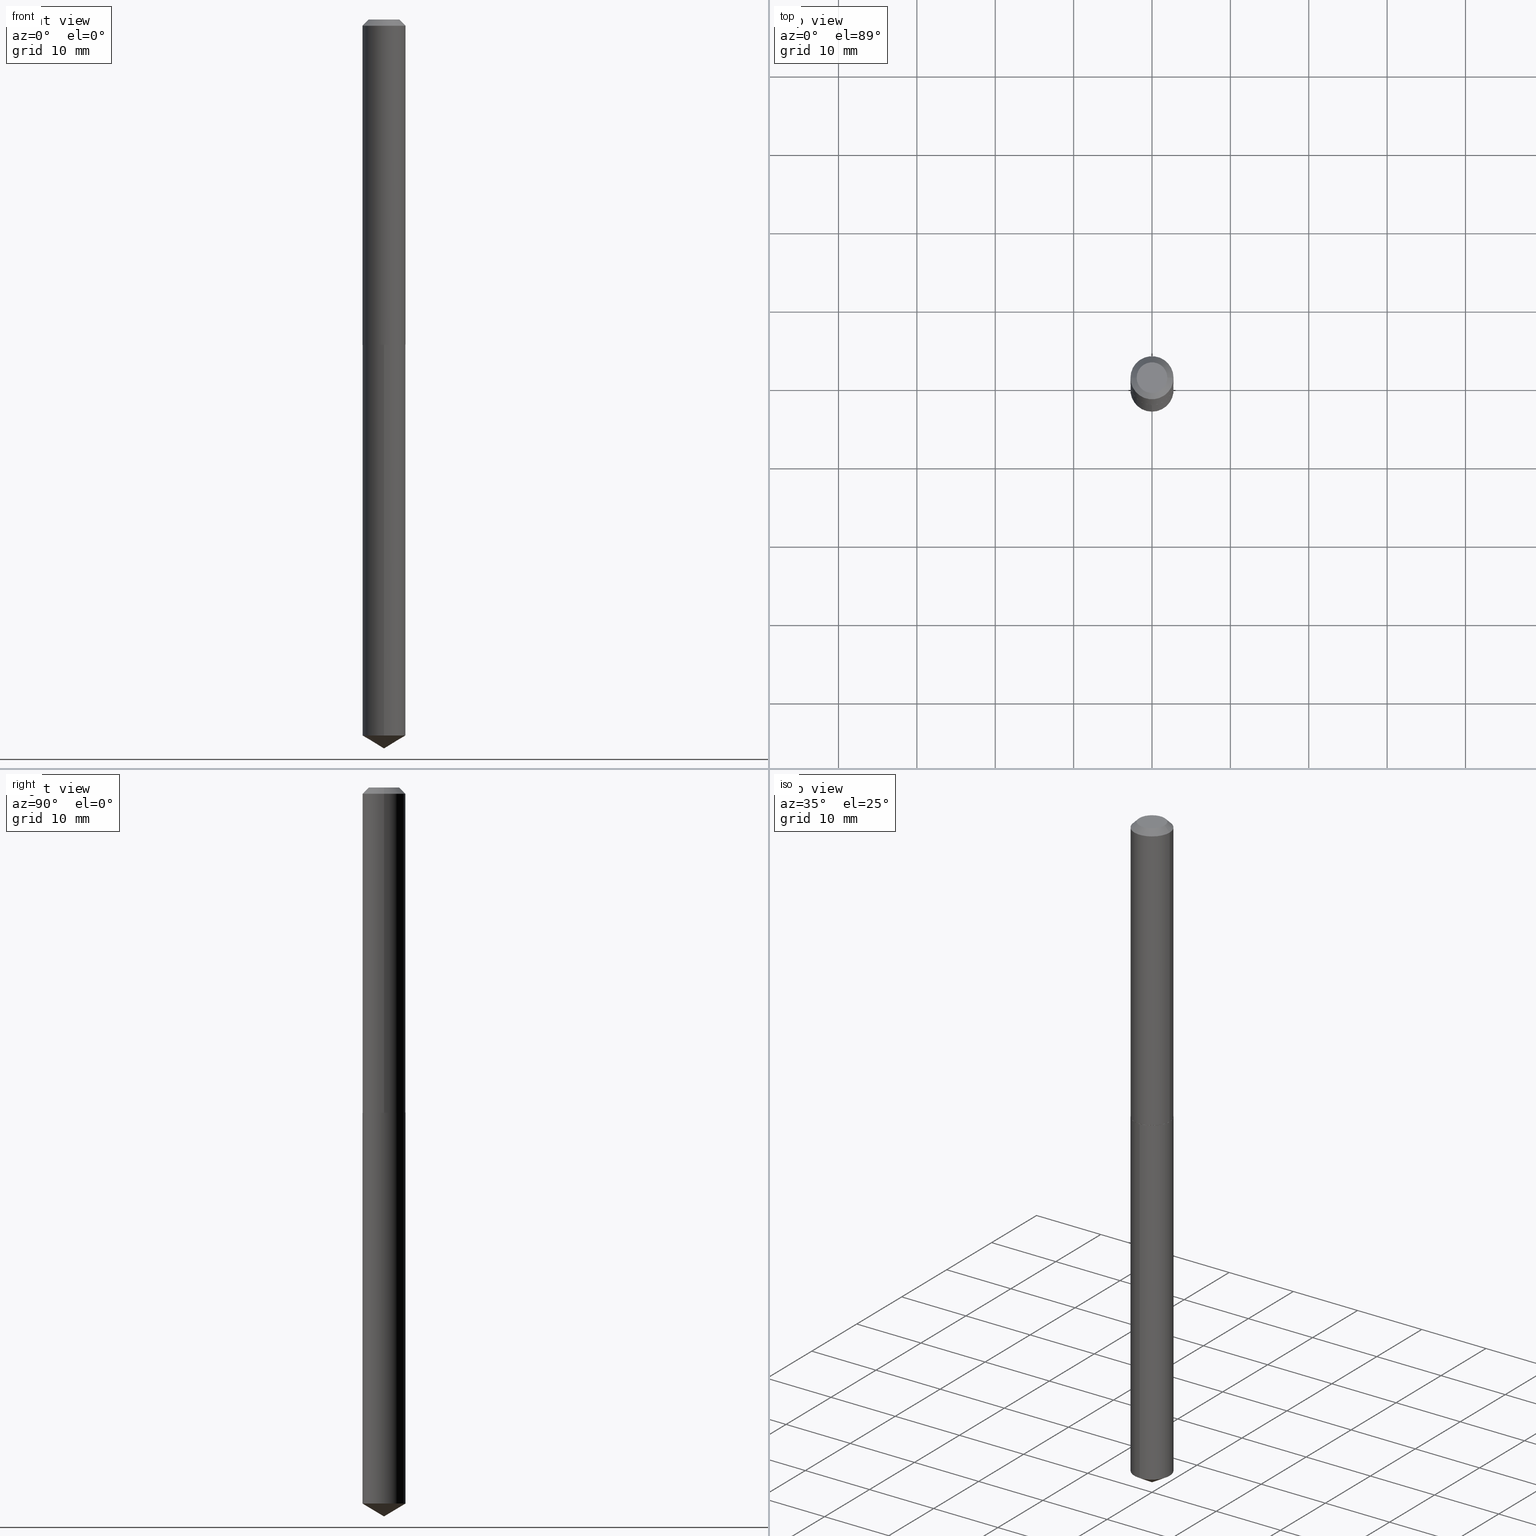
[diagram: canonical four-view strip — front | top / right | iso, engineering-drawing reading convention]
A machine part, canonical four-view strip (front | top / right | iso — engineering-drawing reading convention). The complete STEP part file that produces these views, byte-faithful:
ISO-10303-21;
HEADER;
FILE_DESCRIPTION (( 'STEP AP203' ),
    '1' );
FILE_NAME ('68280.STEP',
    '2024-04-23T12:57:17',
    ( '' ),
    ( '' ),
    'SwSTEP 2.0',
    'SolidWorks 2023',
    '' );
FILE_SCHEMA (( 'CONFIG_CONTROL_DESIGN' ));
ENDSEC;

DATA;
#1 = PERSON_AND_ORGANIZATION ( #288, #210 ) ;
#2 = EDGE_CURVE ( 'NONE', #223, #251, #306, .T. ) ;
#3 = ORIENTED_EDGE ( 'NONE', *, *, #128, .T. ) ;
#4 = DATE_TIME_ROLE ( 'creation_date' ) ;
#5 = AXIS2_PLACEMENT_3D ( 'NONE', #378, #141, #387 ) ;
#6 = APPROVAL_PERSON_ORGANIZATION ( #238, #296, #235 ) ;
#7 = ADVANCED_FACE ( 'NONE', ( #157 ), #13, .T. ) ;
#8 = EDGE_CURVE ( 'NONE', #326, #379, #175, .T. ) ;
#9 = CARTESIAN_POINT ( 'NONE',  ( 0.1082500000000001239, -7.559057098595392471E-16, 5.278461359799106297E-30 ) ) ;
#10 = ORIENTED_EDGE ( 'NONE', *, *, #107, .F. ) ;
#11 = CALENDAR_DATE ( 2024, 23, 4 ) ;
#12 = DIRECTION ( 'NONE',  ( -6.982962677686265922E-15, -1.000000000000000000, 2.523647107311097814E-15 ) ) ;
#13 = CONICAL_SURFACE ( 'NONE', #66, 0.1082500000000002210, 0.7853981633972606513 ) ;
#14 = AXIS2_PLACEMENT_3D ( 'NONE', #184, #282, #76 ) ;
#15 = CARTESIAN_POINT ( 'NONE',  ( 0.000000000000000000, 0.000000000000000000, 0.000000000000000000 ) ) ;
#16 = DIRECTION ( 'NONE',  ( -2.438088387897960049E-29, 3.491481338843145188E-15, 1.000000000000000000 ) ) ;
#17 = EDGE_LOOP ( 'NONE', ( #21, #77, #196, #252 ) ) ;
#18 = ORIENTED_EDGE ( 'NONE', *, *, #97, .F. ) ;
#19 = UNCERTAINTY_MEASURE_WITH_UNIT (LENGTH_MEASURE( 1.000000000000000082E-05 ), #116, 'distance_accuracy_value', 'NONE');
#20 = FACE_OUTER_BOUND ( 'NONE', #339, .T. ) ;
#21 = ORIENTED_EDGE ( 'NONE', *, *, #30, .T. ) ;
#22 = CONICAL_SURFACE ( 'NONE', #110, 0.1082500000000000129, 0.7853981633974452814 ) ;
#23 = PRODUCT ( '68280', '68280', '', ( #287 ) ) ;
#24 = CARTESIAN_POINT ( 'NONE',  ( 3.995406935545275904E-29, -5.704382211401930676E-15, -1.633799999999999919 ) ) ;
#25 = ORIENTED_EDGE ( 'NONE', *, *, #212, .T. ) ;
#26 = DIRECTION ( 'NONE',  ( -2.445518993859690405E-29, 3.491409467236679576E-15, 1.000000000000000000 ) ) ;
#27 = EDGE_LOOP ( 'NONE', ( #18, #94, #192, #123 ) ) ;
#28 = DIRECTION ( 'NONE',  ( 2.445468806185136597E-29, -3.491481338843145583E-15, -1.000000000000000000 ) ) ;
#29 = FACE_OUTER_BOUND ( 'NONE', #190, .T. ) ;
#30 = EDGE_CURVE ( 'NONE', #160, #186, #153, .T. ) ;
#31 = CARTESIAN_POINT ( 'NONE',  ( -0.1082500000000002210, -4.933473959272198657E-15, -1.633299999999999752 ) ) ;
#32 = EDGE_CURVE ( 'NONE', #42, #148, #118, .T. ) ;
#33 = PERSON_AND_ORGANIZATION_ROLE ( 'creator' ) ;
#34 = AXIS2_PLACEMENT_3D ( 'NONE', #15, #156, #368 ) ;
#35 = APPROVAL ( #303, 'UNSPECIFIED' ) ;
#36 = ADVANCED_FACE ( 'NONE', ( #84 ), #384, .T. ) ;
#37 = EDGE_LOOP ( 'NONE', ( #51, #330, #78, #220 ) ) ;
#38 = PERSON_AND_ORGANIZATION ( #288, #210 ) ;
#39 = DIRECTION ( 'NONE',  ( -2.445468806185136877E-29, 3.491481338843145188E-15, 1.000000000000000000 ) ) ;
#40 = APPROVAL_DATE_TIME ( #356, #35 ) ;
#41 = FACE_OUTER_BOUND ( 'NONE', #27, .T. ) ;
#42 = VERTEX_POINT ( 'NONE', #382 ) ;
#43 = PERSON_AND_ORGANIZATION ( #288, #210 ) ;
#44 = EDGE_LOOP ( 'NONE', ( #375, #109, #178, #215 ) ) ;
#45 = CARTESIAN_POINT ( 'NONE',  ( 0.1082500000000002210, -6.458542180592048616E-15, -1.633299999999999752 ) ) ;
#46 = ADVANCED_BREP_SHAPE_REPRESENTATION ( '68280', ( #380, #120, #86 ), #248 ) ;
#47 = CIRCLE ( 'NONE', #62, 0.1082500000000000129 ) ;
#48 = CC_DESIGN_PERSON_AND_ORGANIZATION_ASSIGNMENT ( #328, #205, ( #61 ) ) ;
#49 = DIRECTION ( 'NONE',  ( 0.7071067811865453523, -7.319954787623248157E-15, -0.7071067811865496822 ) ) ;
#50 = EDGE_LOOP ( 'NONE', ( #135, #221 ) ) ;
#51 = ORIENTED_EDGE ( 'NONE', *, *, #346, .F. ) ;
#52 = ADVANCED_FACE ( 'NONE', ( #352 ), #354, .T. ) ;
#53 = FACE_OUTER_BOUND ( 'NONE', #50, .T. ) ;
#54 = VERTEX_POINT ( 'NONE', #59 ) ;
#55 = CONICAL_SURFACE ( 'NONE', #321, 65.52281426576836054, 1.029744258676654090 ) ;
#56 = APPLICATION_PROTOCOL_DEFINITION ( 'international standard', 'config_control_design', 1994, #373 ) ;
#57 = CARTESIAN_POINT ( 'NONE',  ( 3.995406935545275904E-29, -5.704382211401930676E-15, -1.633799999999999919 ) ) ;
#58 = LENGTH_MEASURE_WITH_UNIT ( LENGTH_MEASURE( 0.02539999999999999897 ), #353 );
#59 = CARTESIAN_POINT ( 'NONE',  ( 7.691625114603964021E-16, 0.1082499999999874674, -3.596356837990267064 ) ) ;
#60 = DIRECTION ( 'NONE',  ( 1.000000000000000000, -6.982962677686266711E-15, 0.000000000000000000 ) ) ;
#61 = PRODUCT_DEFINITION ( 'UNKNOWN', '', #155, #106 ) ;
#62 = AXIS2_PLACEMENT_3D ( 'NONE', #173, #89, #60 ) ;
#63 = LOCAL_TIME ( 8, 57, 17.00000000000000000, #336 ) ;
#64 = DIRECTION ( 'NONE',  ( -6.982962677686265922E-15, -1.000000000000000000, 5.047294214622195629E-15 ) ) ;
#65 = EDGE_CURVE ( 'NONE', #379, #326, #47, .T. ) ;
#66 = AXIS2_PLACEMENT_3D ( 'NONE', #126, #243, #362 ) ;
#67 = CC_DESIGN_APPROVAL ( #35, ( #61 ) ) ;
#68 = DIRECTION ( 'NONE',  ( -2.445518993859690405E-29, 3.491409467236679576E-15, 1.000000000000000000 ) ) ;
#69 = CYLINDRICAL_SURFACE ( 'NONE', #34, 0.1082500000000001239 ) ;
#70 = DIRECTION ( 'NONE',  ( 1.000000000000000000, -6.982962677686266711E-15, 0.000000000000000000 ) ) ;
#71 = VECTOR ( 'NONE', #87, 39.37007874015748143 ) ;
#72 = CARTESIAN_POINT ( 'NONE',  ( -7.559057098594504016E-16, -0.1082500000000125445, -3.596356837990265731 ) ) ;
#73 = ORIENTED_EDGE ( 'NONE', *, *, #322, .T. ) ;
#74 = APPROVAL_STATUS ( 'not_yet_approved' ) ;
#75 = CARTESIAN_POINT ( 'NONE',  ( 8.794876959379687620E-29, -1.255647173555123152E-14, -3.596356837990266619 ) ) ;
#76 = DIRECTION ( 'NONE',  ( 1.000000000000000000, -6.982962677686266711E-15, 4.876176775795935793E-29 ) ) ;
#77 = ORIENTED_EDGE ( 'NONE', *, *, #346, .T. ) ;
#78 = ORIENTED_EDGE ( 'NONE', *, *, #144, .T. ) ;
#79 = CARTESIAN_POINT ( 'NONE',  ( 0.1082500000000002210, -6.458542180592048616E-15, -1.633299999999999752 ) ) ;
#80 = VERTEX_POINT ( 'NONE', #146 ) ;
#81 = AXIS2_PLACEMENT_3D ( 'NONE', #147, #191, #12 ) ;
#82 = ORIENTED_EDGE ( 'NONE', *, *, #291, .F. ) ;
#83 = CC_DESIGN_PERSON_AND_ORGANIZATION_ASSIGNMENT ( #98, #211, ( #155 ) ) ;
#84 = FACE_OUTER_BOUND ( 'NONE', #245, .T. ) ;
#85 = CIRCLE ( 'NONE', #285, 0.1082499999999999990 ) ;
#86 = AXIS2_PLACEMENT_3D ( 'NONE', #381, #232, #351 ) ;
#87 = DIRECTION ( 'NONE',  ( -2.445468806185136877E-29, 3.491481338843145188E-15, 1.000000000000000000 ) ) ;
#88 = ADVANCED_FACE ( 'NONE', ( #119 ), #122, .T. ) ;
#89 = DIRECTION ( 'NONE',  ( -2.445468806185136597E-29, 3.491481338843145583E-15, 1.000000000000000000 ) ) ;
#90 = PLANE ( 'NONE',  #203 ) ;
#91 = CARTESIAN_POINT ( 'NONE',  ( 3.995406935545275904E-29, -5.704382211401930676E-15, -1.633799999999999919 ) ) ;
#92 = APPROVAL_PERSON_ORGANIZATION ( #43, #150, #158 ) ;
#93 = CC_DESIGN_PERSON_AND_ORGANIZATION_ASSIGNMENT ( #38, #33, ( #155 ) ) ;
#94 = ORIENTED_EDGE ( 'NONE', *, *, #250, .F. ) ;
#95 = CALENDAR_DATE ( 2024, 23, 4 ) ;
#96 = APPROVAL_DATE_TIME ( #297, #296 ) ;
#97 = EDGE_CURVE ( 'NONE', #80, #379, #180, .T. ) ;
#98 = PERSON_AND_ORGANIZATION ( #288, #210 ) ;
#99 = DIRECTION ( 'NONE',  ( -2.445468806185136597E-29, 3.491481338843145583E-15, 1.000000000000000000 ) ) ;
#100 = LINE ( 'NONE', #182, #253 ) ;
#101 = LINE ( 'NONE', #9, #124 ) ;
#102 = CIRCLE ( 'NONE', #132, 0.1082499999999999990 ) ;
#103 = DIRECTION ( 'NONE',  ( -2.445518993859690405E-29, 3.491409467236679576E-15, 1.000000000000000000 ) ) ;
#104 = EDGE_CURVE ( 'NONE', #275, #223, #100, .T. ) ;
#105 = FACE_OUTER_BOUND ( 'NONE', #37, .T. ) ;
#106 = DESIGN_CONTEXT ( 'detailed design', #263, 'design' ) ;
#107 = EDGE_CURVE ( 'NONE', #80, #302, #183, .T. ) ;
#108 = ORIENTED_EDGE ( 'NONE', *, *, #386, .F. ) ;
#109 = ORIENTED_EDGE ( 'NONE', *, *, #389, .T. ) ;
#110 = AXIS2_PLACEMENT_3D ( 'NONE', #159, #218, #219 ) ;
#111 = CARTESIAN_POINT ( 'NONE',  ( 8.954024682145052788E-29, -1.278344662334037915E-14, -3.661399999999999988 ) ) ;
#112 = ORIENTED_EDGE ( 'NONE', *, *, #104, .F. ) ;
#113 = DIRECTION ( 'NONE',  ( -0.7071067811865453523, 2.468850131082234184E-15, -0.7071067811865496822 ) ) ;
#114 = CARTESIAN_POINT ( 'NONE',  ( -8.732633410131152453E-28, 1.246735015920683391E-13, 35.70867874015748100 ) ) ;
#115 = AXIS2_PLACEMENT_3D ( 'NONE', #272, #333, #70 ) ;
#116 =( CONVERSION_BASED_UNIT ( 'INCH', #58 ) LENGTH_UNIT ( ) NAMED_UNIT ( #294 ) );
#117 = CARTESIAN_POINT ( 'NONE',  ( 0.1082500000000000129, -8.650145016983875588E-16, -0.03125000000000022204 ) ) ;
#118 = CIRCLE ( 'NONE', #278, 0.1077500000000002345 ) ;
#119 = FACE_OUTER_BOUND ( 'NONE', #44, .T. ) ;
#120 = MANIFOLD_SOLID_BREP ( 'Body-Move/Copy2[2]', #167 ) ;
#121 = COORDINATED_UNIVERSAL_TIME_OFFSET ( 5, 0, .BEHIND. ) ;
#122 = CYLINDRICAL_SURFACE ( 'NONE', #81, 0.1082499999999999990 ) ;
#123 = ORIENTED_EDGE ( 'NONE', *, *, #8, .T. ) ;
#124 = VECTOR ( 'NONE', #39, 39.37007874015748143 ) ;
#125 = CARTESIAN_POINT ( 'NONE',  ( 3.995406935545275904E-29, -5.704382211401930676E-15, -1.633799999999999919 ) ) ;
#126 = CARTESIAN_POINT ( 'NONE',  ( 3.994184201142183102E-29, -5.702636470732509172E-15, -1.633299999999999752 ) ) ;
#127 = DIRECTION ( 'NONE',  ( -6.982962677686269077E-15, -1.000000000000000000, 3.468864327941598158E-15 ) ) ;
#128 = EDGE_CURVE ( 'NONE', #251, #227, #266, .T. ) ;
#129 = DATE_AND_TIME ( #11, #170 ) ;
#130 = DIRECTION ( 'NONE',  ( -6.982962677686265922E-15, -1.000000000000000000, 2.523647107311097814E-15 ) ) ;
#131 = ORIENTED_EDGE ( 'NONE', *, *, #291, .T. ) ;
#132 = AXIS2_PLACEMENT_3D ( 'NONE', #75, #152, #312 ) ;
#133 = CARTESIAN_POINT ( 'NONE',  ( -2.934938834991140479E-47, 4.190314816979034009E-33, 1.200153863164406066E-18 ) ) ;
#134 = ORIENTED_EDGE ( 'NONE', *, *, #318, .T. ) ;
#135 = ORIENTED_EDGE ( 'NONE', *, *, #322, .F. ) ;
#136 = AXIS2_PLACEMENT_3D ( 'NONE', #137, #16, #174 ) ;
#137 = CARTESIAN_POINT ( 'NONE',  ( 3.995406935545275904E-29, -5.704382211401930676E-15, -1.633799999999999919 ) ) ;
#138 = EDGE_LOOP ( 'NONE', ( #10, #340, #315, #108 ) ) ;
#139 = EDGE_CURVE ( 'NONE', #186, #160, #365, .T. ) ;
#140 = DIRECTION ( 'NONE',  ( -6.982962677686269077E-15, -1.000000000000000000, 3.468864327941598158E-15 ) ) ;
#141 = DIRECTION ( 'NONE',  ( -2.445468806185136597E-29, 3.491481338843145583E-15, 1.000000000000000000 ) ) ;
#142 = CARTESIAN_POINT ( 'NONE',  ( -1.467469417495570240E-47, 2.095157408489517005E-33, 6.000769315822030332E-19 ) ) ;
#143 = DIRECTION ( 'NONE',  ( -1.000000000000000000, 6.982962677686266711E-15, 0.000000000000000000 ) ) ;
#144 = EDGE_CURVE ( 'NONE', #160, #379, #101, .T. ) ;
#145 = FACE_OUTER_BOUND ( 'NONE', #193, .T. ) ;
#146 = CARTESIAN_POINT ( 'NONE',  ( 0.07699999999999998512, -6.900080229630126447E-16, 1.200153863168698194E-18 ) ) ;
#147 = CARTESIAN_POINT ( 'NONE',  ( 3.995406935545275904E-29, -5.704382211401930676E-15, -1.633799999999999919 ) ) ;
#148 = VERTEX_POINT ( 'NONE', #241 ) ;
#149 = DATE_TIME_ROLE ( 'classification_date' ) ;
#150 = APPROVAL ( #74, 'UNSPECIFIED' ) ;
#151 = ORIENTED_EDGE ( 'NONE', *, *, #107, .T. ) ;
#152 = DIRECTION ( 'NONE',  ( -2.445518993859690405E-29, 3.491409467236679576E-15, 1.000000000000000000 ) ) ;
#153 = CIRCLE ( 'NONE', #5, 0.1082500000000002210 ) ;
#154 = ORIENTED_EDGE ( 'NONE', *, *, #327, .F. ) ;
#155 = PRODUCT_DEFINITION_FORMATION_WITH_SPECIFIED_SOURCE ( 'ANY', '', #23, .NOT_KNOWN. ) ;
#156 = DIRECTION ( 'NONE',  ( -2.445468806185136597E-29, 3.491481338843145583E-15, 1.000000000000000000 ) ) ;
#157 = FACE_OUTER_BOUND ( 'NONE', #276, .T. ) ;
#158 = APPROVAL_ROLE ( '' ) ;
#159 = CARTESIAN_POINT ( 'NONE',  ( 7.642090019328606165E-31, -1.091087918388490760E-16, -0.03125000000000022204 ) ) ;
#160 = VERTEX_POINT ( 'NONE', #79 ) ;
#161 = DIRECTION ( 'NONE',  ( 0.7071067811864147901, -2.468850131080866299E-15, 0.7071067811866802444 ) ) ;
#162 = CARTESIAN_POINT ( 'NONE',  ( -0.1082500000000000129, -2.136710119825369016E-15, -0.03125000000000022204 ) ) ;
#163 = AXIS2_PLACEMENT_3D ( 'NONE', #350, #200, #319 ) ;
#164 = CARTESIAN_POINT ( 'NONE',  ( -0.1082500000000002210, -4.933473959272198657E-15, -1.633299999999999752 ) ) ;
#165 = ORIENTED_EDGE ( 'NONE', *, *, #139, .F. ) ;
#166 = PRODUCT_RELATED_PRODUCT_CATEGORY ( 'detail', '', ( #23 ) ) ;
#167 = CLOSED_SHELL ( 'NONE', ( #376, #320, #7, #338, #52, #284, #207, #357 ) ) ;
#168 = ORIENTED_EDGE ( 'NONE', *, *, #250, .T. ) ;
#169 = PRODUCT_DEFINITION_SHAPE ( 'NONE', 'NONE',  #61 ) ;
#170 = LOCAL_TIME ( 8, 57, 17.00000000000000000, #273 ) ;
#171 = DIRECTION ( 'NONE',  ( -1.000000000000000000, 6.982962677686265922E-15, -4.876176775795935793E-29 ) ) ;
#172 = CARTESIAN_POINT ( 'NONE',  ( 8.794876959379687620E-29, -1.255647173555123152E-14, -3.596356837990266619 ) ) ;
#173 = CARTESIAN_POINT ( 'NONE',  ( 7.642090019328606165E-31, -1.091087918388490760E-16, -0.03125000000000022204 ) ) ;
#174 = DIRECTION ( 'NONE',  ( 1.000000000000000000, -6.982962677686265922E-15, 4.876176775795935793E-29 ) ) ;
#175 = CIRCLE ( 'NONE', #115, 0.1082500000000000129 ) ;
#176 = AXIS2_PLACEMENT_3D ( 'NONE', #172, #201, #64 ) ;
#177 = VECTOR ( 'NONE', #161, 39.37007874015748143 ) ;
#178 = ORIENTED_EDGE ( 'NONE', *, *, #2, .T. ) ;
#179 = APPROVAL_STATUS ( 'not_yet_approved' ) ;
#180 = LINE ( 'NONE', #214, #292 ) ;
#181 = CARTESIAN_POINT ( 'NONE',  ( -7.559057098594983249E-16, -0.1082500000000057028, -1.633799999999999697 ) ) ;
#182 = CARTESIAN_POINT ( 'NONE',  ( 8.953859250872498583E-29, -1.278368147100166720E-14, -3.661399999999999988 ) ) ;
#183 = CIRCLE ( 'NONE', #262, 0.07699999999999998512 ) ;
#184 = CARTESIAN_POINT ( 'NONE',  ( 0.000000000000000000, 0.000000000000000000, 0.000000000000000000 ) ) ;
#185 = LINE ( 'NONE', #45, #177 ) ;
#186 = VERTEX_POINT ( 'NONE', #164 ) ;
#187 = ORIENTED_EDGE ( 'NONE', *, *, #389, .F. ) ;
#188 = DIRECTION ( 'NONE',  ( -2.445468806185136597E-29, 3.491481338843145583E-15, 1.000000000000000000 ) ) ;
#189 = DIRECTION ( 'NONE',  ( -2.445468806185136597E-29, 3.491481338843145583E-15, 1.000000000000000000 ) ) ;
#190 = EDGE_LOOP ( 'NONE', ( #3, #25 ) ) ;
#191 = DIRECTION ( 'NONE',  ( -2.445518993859690405E-29, 3.491409467236679576E-15, 1.000000000000000000 ) ) ;
#192 = ORIENTED_EDGE ( 'NONE', *, *, #386, .T. ) ;
#193 = EDGE_LOOP ( 'NONE', ( #168, #151 ) ) ;
#194 = AXIS2_PLACEMENT_3D ( 'NONE', #142, #388, #171 ) ;
#195 = CARTESIAN_POINT ( 'NONE',  ( 3.995406935545275904E-29, -5.704382211401930676E-15, -1.633799999999999919 ) ) ;
#196 = ORIENTED_EDGE ( 'NONE', *, *, #65, .F. ) ;
#197 = CC_DESIGN_PERSON_AND_ORGANIZATION_ASSIGNMENT ( #246, #267, ( #255 ) ) ;
#198 = AXIS2_PLACEMENT_3D ( 'NONE', #133, #305, #332 ) ;
#199 = PLANE ( 'NONE',  #194 ) ;
#200 = DIRECTION ( 'NONE',  ( -2.445468806185136597E-29, 3.491481338843145583E-15, 1.000000000000000000 ) ) ;
#201 = DIRECTION ( 'NONE',  ( -2.445518993859690405E-29, 3.491409467236679576E-15, 1.000000000000000000 ) ) ;
#202 = DIRECTION ( 'NONE',  ( 6.982962677686265922E-15, 1.000000000000000000, -3.491409467236679576E-15 ) ) ;
#203 = AXIS2_PLACEMENT_3D ( 'NONE', #91, #204, #202 ) ;
#204 = DIRECTION ( 'NONE',  ( 2.445518993859690124E-29, -3.491409467236679576E-15, -1.000000000000000000 ) ) ;
#205 = PERSON_AND_ORGANIZATION_ROLE ( 'creator' ) ;
#206 = SECURITY_CLASSIFICATION_LEVEL ( 'unclassified' ) ;
#207 = ADVANCED_FACE ( 'NONE', ( #41 ), #22, .T. ) ;
#208 = ORIENTED_EDGE ( 'NONE', *, *, #301, .T. ) ;
#209 = PERSON_AND_ORGANIZATION_ROLE ( 'design_owner' ) ;
#210 = ORGANIZATION ( 'UNSPECIFIED', 'UNSPECIFIED', '' ) ;
#211 = PERSON_AND_ORGANIZATION_ROLE ( 'design_supplier' ) ;
#212 = EDGE_CURVE ( 'NONE', #227, #251, #85, .T. ) ;
#213 = ORIENTED_EDGE ( 'NONE', *, *, #30, .F. ) ;
#214 = CARTESIAN_POINT ( 'NONE',  ( 0.1082500000000000129, -8.517577000976174743E-16, -0.03125000000000022204 ) ) ;
#215 = ORIENTED_EDGE ( 'NONE', *, *, #212, .F. ) ;
#216 = AXIS2_PLACEMENT_3D ( 'NONE', #125, #309, #337 ) ;
#217 = SHAPE_DEFINITION_REPRESENTATION ( #169, #46 ) ;
#218 = DIRECTION ( 'NONE',  ( 2.445468806185136597E-29, -3.491481338843145583E-15, -1.000000000000000000 ) ) ;
#219 = DIRECTION ( 'NONE',  ( -1.000000000000000000, 6.982962677686266711E-15, 0.000000000000000000 ) ) ;
#220 = ORIENTED_EDGE ( 'NONE', *, *, #8, .F. ) ;
#221 = ORIENTED_EDGE ( 'NONE', *, *, #32, .F. ) ;
#222 = CC_DESIGN_DATE_AND_TIME_ASSIGNMENT ( #264, #4, ( #61 ) ) ;
#223 = VERTEX_POINT ( 'NONE', #72 ) ;
#224 = AXIS2_PLACEMENT_3D ( 'NONE', #247, #99, #329 ) ;
#225 = ORIENTED_EDGE ( 'NONE', *, *, #104, .T. ) ;
#226 = AXIS2_PLACEMENT_3D ( 'NONE', #195, #189, #313 ) ;
#227 = VERTEX_POINT ( 'NONE', #361 ) ;
#228 =( NAMED_UNIT ( * ) SI_UNIT ( $, .STERADIAN. ) SOLID_ANGLE_UNIT ( ) );
#229 = CARTESIAN_POINT ( 'NONE',  ( -0.1082500000000001239, 7.691625114603093316E-16, -5.324747235200940914E-30 ) ) ;
#230 = DIRECTION ( 'NONE',  ( -6.982962677686265922E-15, -1.000000000000000000, 2.523647107311097814E-15 ) ) ;
#231 = AXIS2_PLACEMENT_3D ( 'NONE', #258, #28, #143 ) ;
#232 = DIRECTION ( 'NONE',  ( 0.000000000000000000, 0.000000000000000000, 1.000000000000000000 ) ) ;
#233 = LOCAL_TIME ( 8, 57, 17.00000000000000000, #121 ) ;
#234 = APPROVAL_ROLE ( '' ) ;
#235 = APPROVAL_ROLE ( '' ) ;
#236 = DATE_AND_TIME ( #310, #63 ) ;
#237 = ORIENTED_EDGE ( 'NONE', *, *, #32, .T. ) ;
#238 = PERSON_AND_ORGANIZATION ( #288, #210 ) ;
#239 = VECTOR ( 'NONE', #269, 39.37007874015748143 ) ;
#240 = ADVANCED_FACE ( 'NONE', ( #20 ), #55, .T. ) ;
#241 = CARTESIAN_POINT ( 'NONE',  ( 0.1077500000000002345, -6.456796439922627113E-15, -1.633799999999999919 ) ) ;
#242 = DIRECTION ( 'NONE',  ( -5.985567269335942857E-15, -0.8571673007021103352, 0.5150380749100574862 ) ) ;
#243 = DIRECTION ( 'NONE',  ( -2.445468806185136597E-29, 3.491481338843145583E-15, 1.000000000000000000 ) ) ;
#244 = CARTESIAN_POINT ( 'NONE',  ( -0.07699999999999998512, 5.922425221012659905E-16, 1.200153863160455214E-18 ) ) ;
#245 = EDGE_LOOP ( 'NONE', ( #131, #208, #369, #374 ) ) ;
#246 = PERSON_AND_ORGANIZATION ( #288, #210 ) ;
#247 = CARTESIAN_POINT ( 'NONE',  ( 3.994184201142183102E-29, -5.702636470732509172E-15, -1.633299999999999752 ) ) ;
#248 =( GEOMETRIC_REPRESENTATION_CONTEXT ( 3 ) GLOBAL_UNCERTAINTY_ASSIGNED_CONTEXT ( ( #19 ) ) GLOBAL_UNIT_ASSIGNED_CONTEXT ( ( #116, #261, #228 ) ) REPRESENTATION_CONTEXT ( 'NONE', 'WORKASPACE' ) );
#249 = FACE_OUTER_BOUND ( 'NONE', #17, .T. ) ;
#250 = EDGE_CURVE ( 'NONE', #302, #80, #298, .T. ) ;
#251 = VERTEX_POINT ( 'NONE', #341 ) ;
#252 = ORIENTED_EDGE ( 'NONE', *, *, #144, .F. ) ;
#253 = VECTOR ( 'NONE', #242, 39.37007874015748143 ) ;
#254 = ORIENTED_EDGE ( 'NONE', *, *, #327, .T. ) ;
#255 = SECURITY_CLASSIFICATION ( '', '', #206 ) ;
#256 = EDGE_LOOP ( 'NONE', ( #359, #237, #134, #165 ) ) ;
#257 = DIRECTION ( 'NONE',  ( -2.445518993859690405E-29, 3.491409467236679576E-15, 1.000000000000000000 ) ) ;
#258 = CARTESIAN_POINT ( 'NONE',  ( 7.642090019328606165E-31, -1.091087918388490760E-16, -0.03125000000000022204 ) ) ;
#259 = DIRECTION ( 'NONE',  ( -2.445468806185136597E-29, 3.491481338843145583E-15, 1.000000000000000000 ) ) ;
#260 = LINE ( 'NONE', #31, #377 ) ;
#261 =( NAMED_UNIT ( * ) PLANE_ANGLE_UNIT ( ) SI_UNIT ( $, .RADIAN. ) );
#262 = AXIS2_PLACEMENT_3D ( 'NONE', #314, #188, #311 ) ;
#263 = APPLICATION_CONTEXT ( 'configuration controlled 3d designs of mechanical parts and assemblies' ) ;
#264 = DATE_AND_TIME ( #300, #280 ) ;
#265 = PERSON_AND_ORGANIZATION ( #288, #210 ) ;
#266 = CIRCLE ( 'NONE', #216, 0.1082499999999999990 ) ;
#267 = PERSON_AND_ORGANIZATION_ROLE ( 'classification_officer' ) ;
#268 = LINE ( 'NONE', #342, #349 ) ;
#269 = DIRECTION ( 'NONE',  ( -2.445518993859690405E-29, 3.491409467236679576E-15, 1.000000000000000000 ) ) ;
#270 = CC_DESIGN_PERSON_AND_ORGANIZATION_ASSIGNMENT ( #1, #209, ( #23 ) ) ;
#271 = DIRECTION ( 'NONE',  ( -2.445518993859690405E-29, 3.491409467236679576E-15, 1.000000000000000000 ) ) ;
#272 = CARTESIAN_POINT ( 'NONE',  ( 7.642090019328606165E-31, -1.091087918388490760E-16, -0.03125000000000022204 ) ) ;
#273 = COORDINATED_UNIVERSAL_TIME_OFFSET ( 5, 0, .BEHIND. ) ;
#274 = CARTESIAN_POINT ( 'NONE',  ( 3.995406935545275904E-29, -5.704382211401930676E-15, -1.633799999999999919 ) ) ;
#275 = VERTEX_POINT ( 'NONE', #277 ) ;
#276 = EDGE_LOOP ( 'NONE', ( #73, #281, #213, #283 ) ) ;
#277 = CARTESIAN_POINT ( 'NONE',  ( 8.954023244117870758E-29, -1.278344662334037915E-14, -3.661399999999999988 ) ) ;
#278 = AXIS2_PLACEMENT_3D ( 'NONE', #24, #259, #347 ) ;
#279 = LINE ( 'NONE', #111, #390 ) ;
#280 = LOCAL_TIME ( 8, 57, 17.00000000000000000, #304 ) ;
#281 = ORIENTED_EDGE ( 'NONE', *, *, #370, .T. ) ;
#282 = DIRECTION ( 'NONE',  ( -2.445468806185136597E-29, 3.491481338843145583E-15, 1.000000000000000000 ) ) ;
#283 = ORIENTED_EDGE ( 'NONE', *, *, #318, .F. ) ;
#284 = ADVANCED_FACE ( 'NONE', ( #105 ), #69, .T. ) ;
#285 = AXIS2_PLACEMENT_3D ( 'NONE', #274, #103, #130 ) ;
#286 = LOCAL_TIME ( 8, 57, 17.00000000000000000, #360 ) ;
#287 = MECHANICAL_CONTEXT ( 'NONE', #373, 'mechanical' ) ;
#288 = PERSON ( 'UNSPECIFIED', 'UNSPECIFIED', 'UNSPECIFIED', ('UNSPECIFIED'), ('UNSPECIFIED'), ('UNSPECIFIED') ) ;
#289 = FACE_OUTER_BOUND ( 'NONE', #138, .T. ) ;
#290 = LINE ( 'NONE', #229, #71 ) ;
#291 = EDGE_CURVE ( 'NONE', #223, #54, #102, .T. ) ;
#292 = VECTOR ( 'NONE', #49, 39.37007874015748143 ) ;
#293 = APPROVAL_PERSON_ORGANIZATION ( #265, #35, #234 ) ;
#294 = DIMENSIONAL_EXPONENTS ( 1.000000000000000000, 0.000000000000000000, 0.000000000000000000, 0.000000000000000000, 0.000000000000000000, 0.000000000000000000, 0.000000000000000000 ) ;
#295 = FACE_OUTER_BOUND ( 'NONE', #345, .T. ) ;
#296 = APPROVAL ( #179, 'UNSPECIFIED' ) ;
#297 = DATE_AND_TIME ( #95, #286 ) ;
#298 = CIRCLE ( 'NONE', #198, 0.07699999999999998512 ) ;
#299 = CC_DESIGN_SECURITY_CLASSIFICATION ( #255, ( #155 ) ) ;
#300 = CALENDAR_DATE ( 2024, 23, 4 ) ;
#301 = EDGE_CURVE ( 'NONE', #54, #227, #268, .T. ) ;
#302 = VERTEX_POINT ( 'NONE', #244 ) ;
#303 = APPROVAL_STATUS ( 'not_yet_approved' ) ;
#304 = COORDINATED_UNIVERSAL_TIME_OFFSET ( 5, 0, .BEHIND. ) ;
#305 = DIRECTION ( 'NONE',  ( -2.445468806185136597E-29, 3.491481338843145583E-15, 1.000000000000000000 ) ) ;
#306 = LINE ( 'NONE', #181, #239 ) ;
#307 = CONICAL_SURFACE ( 'NONE', #308, 65.52281426576836054, 1.029744258676654090 ) ;
#308 = AXIS2_PLACEMENT_3D ( 'NONE', #114, #26, #140 ) ;
#309 = DIRECTION ( 'NONE',  ( -2.445518993859690405E-29, 3.491409467236679576E-15, 1.000000000000000000 ) ) ;
#310 = CALENDAR_DATE ( 2024, 23, 4 ) ;
#311 = DIRECTION ( 'NONE',  ( 1.000000000000000000, -6.982962677686266711E-15, 4.876247235587762773E-29 ) ) ;
#312 = DIRECTION ( 'NONE',  ( -6.982962677686265922E-15, -1.000000000000000000, 5.047294214622195629E-15 ) ) ;
#313 = DIRECTION ( 'NONE',  ( 1.000000000000000000, -6.982962677686265133E-15, 0.000000000000000000 ) ) ;
#314 = CARTESIAN_POINT ( 'NONE',  ( -2.934938834991140479E-47, 4.190314816979034009E-33, 1.200153863164406066E-18 ) ) ;
#315 = ORIENTED_EDGE ( 'NONE', *, *, #65, .T. ) ;
#316 = DIRECTION ( 'NONE',  ( 6.090539988449778436E-15, 0.8571673007021139989, 0.5150380749100514910 ) ) ;
#317 = CC_DESIGN_DATE_AND_TIME_ASSIGNMENT ( #236, #149, ( #255 ) ) ;
#318 = EDGE_CURVE ( 'NONE', #148, #160, #185, .T. ) ;
#319 = DIRECTION ( 'NONE',  ( 1.000000000000000000, -6.982962677686261977E-15, 0.000000000000000000 ) ) ;
#320 = ADVANCED_FACE ( 'NONE', ( #249 ), #371, .T. ) ;
#321 = AXIS2_PLACEMENT_3D ( 'NONE', #364, #68, #127 ) ;
#322 = EDGE_CURVE ( 'NONE', #148, #42, #366, .T. ) ;
#323 = DIRECTION ( 'NONE',  ( -0.7071067811864147901, 7.493145998869874533E-15, 0.7071067811866802444 ) ) ;
#324 = CALENDAR_DATE ( 2024, 23, 4 ) ;
#325 = AXIS2_PLACEMENT_3D ( 'NONE', #57, #257, #230 ) ;
#326 = VERTEX_POINT ( 'NONE', #162 ) ;
#327 = EDGE_CURVE ( 'NONE', #275, #54, #279, .T. ) ;
#328 = PERSON_AND_ORGANIZATION ( #288, #210 ) ;
#329 = DIRECTION ( 'NONE',  ( 1.000000000000000000, -6.982962677686261977E-15, 0.000000000000000000 ) ) ;
#330 = ORIENTED_EDGE ( 'NONE', *, *, #139, .T. ) ;
#331 = APPLICATION_PROTOCOL_DEFINITION ( 'international standard', 'config_control_design', 1994, #263 ) ;
#332 = DIRECTION ( 'NONE',  ( 1.000000000000000000, -6.982962677686266711E-15, 4.876247235587762773E-29 ) ) ;
#333 = DIRECTION ( 'NONE',  ( -2.445468806185136597E-29, 3.491481338843145583E-15, 1.000000000000000000 ) ) ;
#334 = CLOSED_SHELL ( 'NONE', ( #36, #363, #240, #88, #343 ) ) ;
#335 = CC_DESIGN_APPROVAL ( #296, ( #155 ) ) ;
#336 = COORDINATED_UNIVERSAL_TIME_OFFSET ( 5, 0, .BEHIND. ) ;
#337 = DIRECTION ( 'NONE',  ( -6.982962677686265922E-15, -1.000000000000000000, 2.523647107311097814E-15 ) ) ;
#338 = ADVANCED_FACE ( 'NONE', ( #53 ), #372, .F. ) ;
#339 = EDGE_LOOP ( 'NONE', ( #154, #225, #187 ) ) ;
#340 = ORIENTED_EDGE ( 'NONE', *, *, #97, .T. ) ;
#341 = CARTESIAN_POINT ( 'NONE',  ( -7.559057098594983249E-16, -0.1082500000000057028, -1.633799999999999697 ) ) ;
#342 = CARTESIAN_POINT ( 'NONE',  ( 7.691625114603482816E-16, 0.1082499999999942952, -1.633800000000000141 ) ) ;
#343 = ADVANCED_FACE ( 'NONE', ( #29 ), #90, .F. ) ;
#344 = CONICAL_SURFACE ( 'NONE', #231, 0.1082500000000000129, 0.7853981633974452814 ) ;
#345 = EDGE_LOOP ( 'NONE', ( #112, #254, #82 ) ) ;
#346 = EDGE_CURVE ( 'NONE', #186, #326, #290, .T. ) ;
#347 = DIRECTION ( 'NONE',  ( 1.000000000000000000, -6.982962677686265133E-15, 0.000000000000000000 ) ) ;
#348 = CARTESIAN_POINT ( 'NONE',  ( -0.1082500000000000129, 6.467969180206894562E-16, -0.03125000000000022204 ) ) ;
#349 = VECTOR ( 'NONE', #271, 39.37007874015748143 ) ;
#350 = CARTESIAN_POINT ( 'NONE',  ( 3.994184201142183102E-29, -5.702636470732509172E-15, -1.633299999999999752 ) ) ;
#351 = DIRECTION ( 'NONE',  ( 1.000000000000000000, 0.000000000000000000, 0.000000000000000000 ) ) ;
#352 = FACE_OUTER_BOUND ( 'NONE', #256, .T. ) ;
#353 =( LENGTH_UNIT ( ) NAMED_UNIT ( * ) SI_UNIT ( $, .METRE. ) );
#354 = CONICAL_SURFACE ( 'NONE', #163, 0.1082500000000002210, 0.7853981633972606513 ) ;
#355 = VECTOR ( 'NONE', #113, 39.37007874015748143 ) ;
#356 = DATE_AND_TIME ( #324, #233 ) ;
#357 = ADVANCED_FACE ( 'NONE', ( #145 ), #199, .F. ) ;
#358 = CC_DESIGN_APPROVAL ( #150, ( #255 ) ) ;
#359 = ORIENTED_EDGE ( 'NONE', *, *, #370, .F. ) ;
#360 = COORDINATED_UNIVERSAL_TIME_OFFSET ( 5, 0, .BEHIND. ) ;
#361 = CARTESIAN_POINT ( 'NONE',  ( 7.691625114603965007E-16, 0.1082499999999942952, -1.633800000000000141 ) ) ;
#362 = DIRECTION ( 'NONE',  ( 1.000000000000000000, -6.982962677686261977E-15, 0.000000000000000000 ) ) ;
#363 = ADVANCED_FACE ( 'NONE', ( #295 ), #307, .T. ) ;
#364 = CARTESIAN_POINT ( 'NONE',  ( -8.732633410131152453E-28, 1.246735015920683391E-13, 35.70867874015748100 ) ) ;
#365 = CIRCLE ( 'NONE', #224, 0.1082500000000002210 ) ;
#366 = CIRCLE ( 'NONE', #226, 0.1077500000000002345 ) ;
#367 = APPROVAL_DATE_TIME ( #129, #150 ) ;
#368 = DIRECTION ( 'NONE',  ( 1.000000000000000000, -6.982962677686266711E-15, 4.876176775795935793E-29 ) ) ;
#369 = ORIENTED_EDGE ( 'NONE', *, *, #128, .F. ) ;
#370 = EDGE_CURVE ( 'NONE', #42, #186, #260, .T. ) ;
#371 = CYLINDRICAL_SURFACE ( 'NONE', #14, 0.1082500000000001239 ) ;
#372 = PLANE ( 'NONE',  #136 ) ;
#373 = APPLICATION_CONTEXT ( 'configuration controlled 3d designs of mechanical parts and assemblies' ) ;
#374 = ORIENTED_EDGE ( 'NONE', *, *, #2, .F. ) ;
#375 = ORIENTED_EDGE ( 'NONE', *, *, #301, .F. ) ;
#376 = ADVANCED_FACE ( 'NONE', ( #289 ), #344, .T. ) ;
#377 = VECTOR ( 'NONE', #323, 39.37007874015748143 ) ;
#378 = CARTESIAN_POINT ( 'NONE',  ( 3.994184201142183102E-29, -5.702636470732509172E-15, -1.633299999999999752 ) ) ;
#379 = VERTEX_POINT ( 'NONE', #117 ) ;
#380 = MANIFOLD_SOLID_BREP ( 'Body-Move/Copy2[1]', #334 ) ;
#381 = CARTESIAN_POINT ( 'NONE',  ( 0.000000000000000000, 0.000000000000000000, 0.000000000000000000 ) ) ;
#382 = CARTESIAN_POINT ( 'NONE',  ( -0.1077500000000002345, -4.936123186446310647E-15, -1.633799999999999919 ) ) ;
#383 = LINE ( 'NONE', #348, #355 ) ;
#384 = CYLINDRICAL_SURFACE ( 'NONE', #325, 0.1082499999999999990 ) ;
#385 = CIRCLE ( 'NONE', #176, 0.1082499999999999990 ) ;
#386 = EDGE_CURVE ( 'NONE', #302, #326, #383, .T. ) ;
#387 = DIRECTION ( 'NONE',  ( 1.000000000000000000, -6.982962677686261977E-15, 0.000000000000000000 ) ) ;
#388 = DIRECTION ( 'NONE',  ( 2.438088387897960049E-29, -3.491481338843145188E-15, -1.000000000000000000 ) ) ;
#389 = EDGE_CURVE ( 'NONE', #54, #223, #385, .T. ) ;
#390 = VECTOR ( 'NONE', #316, 39.37007874015748143 ) ;
ENDSEC;
END-ISO-10303-21;
